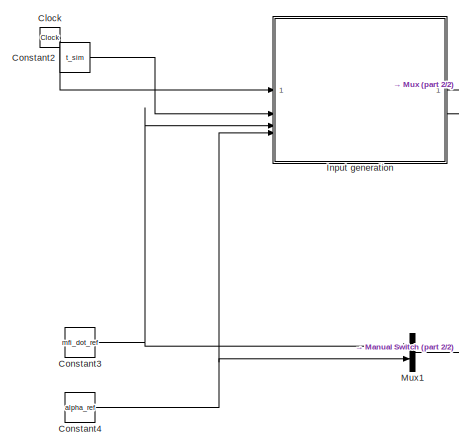
[diagram: root canvas - part 1/2, top left region]
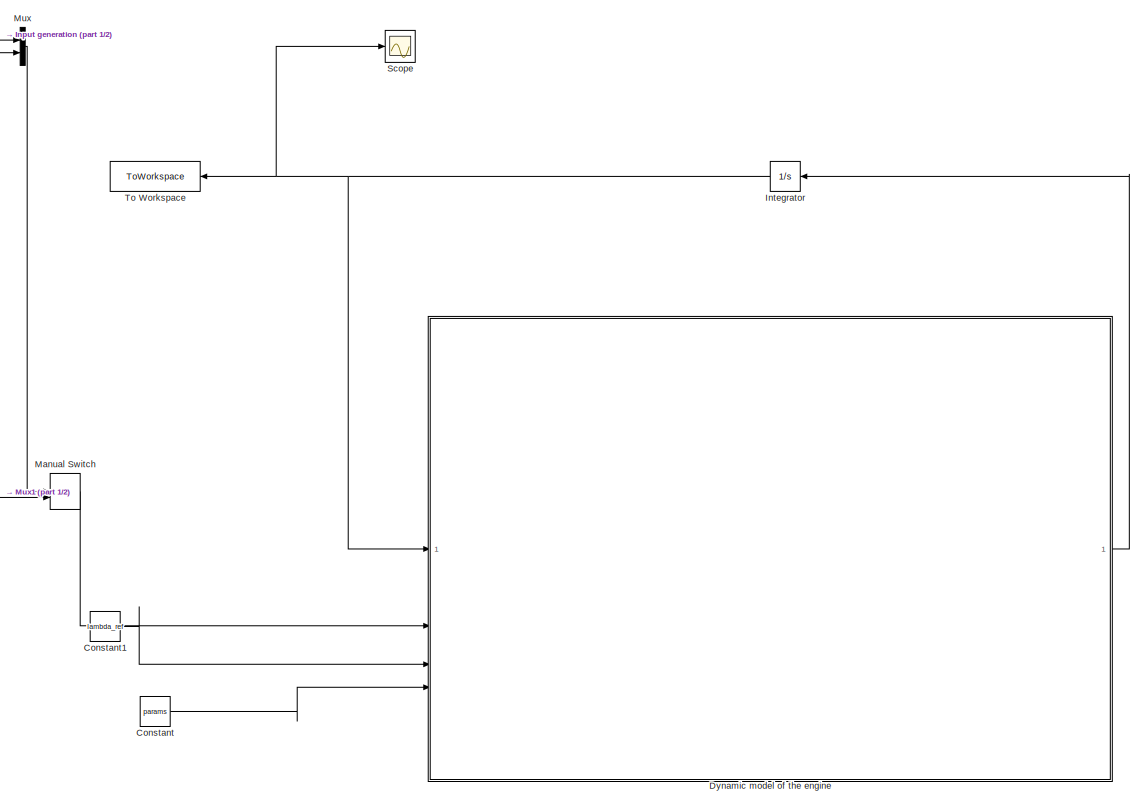
[diagram: root canvas - part 2/2, center side, full height]
MODEL slx_589ffcfc1ca5
KIND model
CONFIG AbsTol = auto
CONFIG EnableMultiTasking = off
CONFIG FixedStep = auto
CONFIG MaxStep = auto
CONFIG MinStep = auto
CONFIG RelTol = 1e-6
CONFIG SampleTimeConstraint = Unconstrained
CONFIG SolverName = VariableStepAuto
CONFIG StartTime = 0.0
CONFIG StopTime = t_sim
BLOCK [Clock] Clock
BLOCK [Constant] Constant
  Value = params
BLOCK [Constant] Constant1
  Value = lambda_ref
BLOCK [Constant] Constant2
  Value = t_sim
BLOCK [Constant] Constant3
  Value = mfi_dot_ref
BLOCK [Constant] Constant4
  Value = alpha_ref
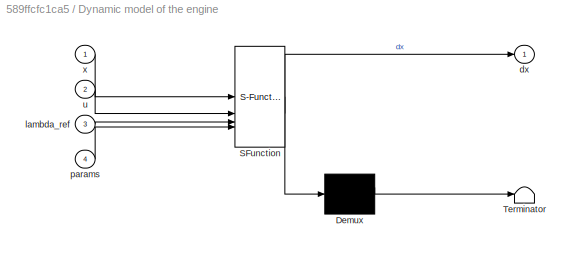
BLOCK [SubSystem] Dynamic model of the engine
  ErrorFcn = Stateflow.Translate.translate
  PermitHierarchicalResolution = ExplicitOnly
  SFBlockType = MATLAB Function
  TreatAsAtomicUnit = on
BLOCK [Demux] Dynamic model of the engine/ Demux 
  Outputs = 1
BLOCK [S-Function] Dynamic model of the engine/ SFunction 
  EnableBusSupport = on
  FunctionName = sf_sfun
  PortCounts = [4 2]
  SFcnIsStateOwnerBlock = off
  SFunctionDeploymentMode = off
  Tag = Stateflow S-Function 2
BLOCK [Terminator] Dynamic model of the engine/ Terminator 
BLOCK [Outport] Dynamic model of the engine/dx
BLOCK [Inport] Dynamic model of the engine/lambda_ref
  Port = 3
BLOCK [Inport] Dynamic model of the engine/params
  Port = 4
BLOCK [Inport] Dynamic model of the engine/u
  Port = 2
BLOCK [Inport] Dynamic model of the engine/x
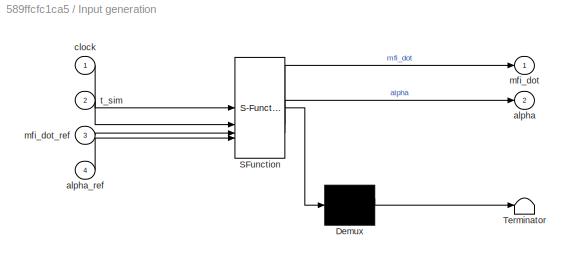
BLOCK [SubSystem] Input generation
  ErrorFcn = Stateflow.Translate.translate
  PermitHierarchicalResolution = ExplicitOnly
  SFBlockType = MATLAB Function
  TreatAsAtomicUnit = on
BLOCK [Demux] Input generation/ Demux 
  Outputs = 1
BLOCK [S-Function] Input generation/ SFunction 
  EnableBusSupport = on
  FunctionName = sf_sfun
  PortCounts = [4 3]
  SFcnIsStateOwnerBlock = off
  SFunctionDeploymentMode = off
  Tag = Stateflow S-Function 1
BLOCK [Terminator] Input generation/ Terminator 
BLOCK [Outport] Input generation/alpha
  Port = 2
BLOCK [Inport] Input generation/alpha_ref
  Port = 4
BLOCK [Inport] Input generation/clock
BLOCK [Outport] Input generation/mfi_dot
BLOCK [Inport] Input generation/mfi_dot_ref
  Port = 3
BLOCK [Inport] Input generation/t_sim
  Port = 2
BLOCK [Integrator] Integrator
  InitialCondition = x0
  NameLocation = top
BLOCK [ManualSwitch] Manual Switch
  CurrentSetting = 0
BLOCK [Mux] Mux
  DisplayOption = bar
  Inputs = 2
BLOCK [Mux] Mux1
  DisplayOption = bar
  Inputs = 2
BLOCK [Scope] Scope
  Floating = off
  NumInputPorts = 1
  ScopeSpecificationString = Simulink.scopes.TimeScopeBlockCfg('CurrentConfiguration', extmgr.ConfigurationSet(extmgr.Configuration('Core','General UI',true),extmgr.Configuration('Core','Source UI',true),extmgr.Configuration('Sources','WiredSimulink',true),extmgr.Configuration('Visuals','Time Domain',true,'SerializedDisplays',{struct('MinYLimReal','-74508.54119','MaxYLimReal','67754.4514','YLabelReal','','MinYLimMag','   0.00...<+1567ch>
BLOCK [ToWorkspace] To Workspace
  FixptAsFi = on
  MaxDataPoints = inf
  NameLocation = top
  SampleTime = -1
  SaveFormat = Timeseries
  VariableName = x
LINE Clock:1 -> Input generation:1
LINE Constant1:1 -> Dynamic model of the engine:3
LINE Constant2:1 -> Input generation:2
NET Constant3:1 -> Input generation:3, Mux1:1
NET Constant4:1 -> Input generation:4, Mux1:2
LINE Constant:1 -> Dynamic model of the engine:4
LINE Dynamic model of the engine:1 -> Integrator:1
LINE Input generation:1 -> Mux:1
LINE Input generation:2 -> Mux:2
NET Integrator:1 -> Dynamic model of the engine:1, Scope:1, To Workspace:1
LINE Manual Switch:1 -> Dynamic model of the engine:2
LINE Mux1:1 -> Manual Switch:2
LINE Mux:1 -> Manual Switch:1
note: NET lines group one-source signal fan-out (src -> all destinations, sorted); 1:1 wires keep LINE
CHART Input generation states=1 transitions=1
  STATE_LABEL 'eML_blk_kernel()'
  STATE_LABEL 'SCRIPT:\nfunction [mfi_dot, alpha] = DynamicInputs(clock, t_sim, mfi_dot_ref, alpha_ref)\n% DynamicInputs generates time-varying inputs alpha (throttle angle)\n% and mfi_dot (fuel injection mass flow rate) based on the simulation clock.\n%\n% Inputs:\n% - clock: Simulation time (in seconds)\n%\n% Outputs:\n% - alpha: Throttle angle (in degrees)\n% - mfi_dot: Fuel injection mass flow rate (in kg/s)\n\n    % De...<+453ch>'
CHART Dynamic model of the engine states=1 transitions=1
  STATE_LABEL 'eML_blk_kernel()'
  STATE_LABEL 'SCRIPT:\nfunction dx = engine_dynamics(x, u, lambda_ref, params)\n    % Engine dynamics \n    %\n    % Inputs:\n    %   x - State vector [p; n; m_ff; lambda_m]\n    %       n: Engine (crank shaft) speed (rpm)\n    %       m_ff: Fuel-film mass flow-rate (Kg)\n    %       lambda_m: measured air-fuel ratio\n    %       p: Intake manifold pressure (Pa)\n    %   u - Control input vector [mf_dot; alpha]\n    %    ...<+2744ch>'
CHART  states=0 transitions=0
CHART  states=0 transitions=0
